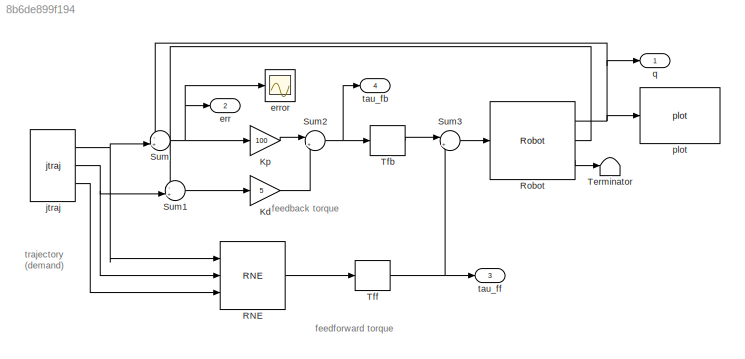
MODEL slx_8b6de899f194
KIND model
CONFIG AbsTol = auto
CONFIG FixedStep = auto
CONFIG MaxStep = auto
CONFIG MinStep = auto
CONFIG RelTol = 1e-3
CONFIG SampleTimeConstraint = Unconstrained
CONFIG Solver = ode23t
CONFIG SolverMode = Auto
CONFIG SolverName = ode23t
CONFIG StartTime = 0.0
CONFIG StopTime = 5
BLOCK [Gain] Kd
  Gain = 5
BLOCK [Gain] Kp
  Gain = 100
BLOCK [Reference] RNE  REF=roblocks/Arm/RNE  (lib defined in mdl_2a292b13c81b, mdl_69400f8cfe22, +12 more)
  Ports = [3, 1]
  SourceBlock = roblocks/Arm/RNE
  grav = [0 0 9.81]
  robot = p560.nofriction()
BLOCK [Reference] Robot  REF=roblocks/Arm/Robot  (lib defined in mdl_2a292b13c81b, mdl_69400f8cfe22, +12 more)
  Ports = [1, 3]
  SourceBlock = roblocks/Arm/Robot
  q0 = [0 0 0 0 0 0]
  robot = p560.nofriction
BLOCK [Sum] Sum
  IconShape = round
  Inputs = -+|
  Ports = [2, 1]
BLOCK [Sum] Sum1
  IconShape = round
  Inputs = -+|
  Ports = [2, 1]
BLOCK [Sum] Sum2
  IconShape = round
  Inputs = |++
  Ports = [2, 1]
BLOCK [Sum] Sum3
  IconShape = round
  Inputs = |++
  Ports = [2, 1]
BLOCK [Terminator] Terminator
BLOCK [ZeroOrderHold] Tfb
  SampleTime = 0.002
BLOCK [ZeroOrderHold] Tff
  SampleTime = 0.05
BLOCK [Outport] err
  IconDisplay = Port number
  Port = 2
BLOCK [Scope] error
  DataFormat = StructureWithTime
  Decimation = 1
  Floating = off
  Grid = on
  LimitDataPoints = off
  MaxDataPoints = 5000
  NumInputPorts = 1
  Ports = [1]
  SampleInput = off
  SampleTime = -1
  SaveName = ScopeData
  SaveToWorkspace = off
  ShowLegends = off
  TickLabels = OneTimeTick
  TimeRange = auto
  YMax = 1.00000
  YMin = -1.00000
  ZoomMode = on
BLOCK [Reference] jtraj  REF=roblocks/Toolbox/jtraj  (lib defined in mdl_2a292b13c81b, mdl_69400f8cfe22, +12 more)
  Ports = [0, 3]
  SourceBlock = roblocks/Toolbox/jtraj
  q0 = [0 0 0 0 0 0]
  qf = [pi/4 pi/2 -pi/2 0 0 0]
  tmax = 5
  ts = 0.02
BLOCK [Reference] plot  REF=roblocks/Arm/plot  (lib defined in mdl_2a292b13c81b, mdl_69400f8cfe22, +12 more)
  Ports = [1]
  SourceBlock = roblocks/Arm/plot
  fps = 10
  holdplot = on
  robot = p560
BLOCK [Outport] q
  IconDisplay = Port number
BLOCK [Outport] tau_fb
  IconDisplay = Port number
  Port = 4
BLOCK [Outport] tau_ff
  IconDisplay = Port number
  Port = 3
ANNOTATION (root): trajectory (demand)
ANNOTATION (root): feedforward torque
ANNOTATION (root): feedback torque
LINE Kd:1 -> Sum2:2
LINE Kp:1 -> Sum2:1
LINE RNE:1 -> Tff:1
NET Robot:1 -> Sum:1, plot:1, q:1
LINE Robot:2 -> Sum1:1
LINE Robot:3 -> Terminator:1
LINE Sum1:1 -> Kd:1
NET Sum2:1 -> Tfb:1, tau_fb:1
LINE Sum3:1 -> Robot:1
NET Sum:1 -> Kp:1, err:1, error:1
LINE Tfb:1 -> Sum3:1
NET Tff:1 -> Sum3:2, tau_ff:1
NET jtraj:1 -> RNE:1, Sum:2
NET jtraj:2 -> RNE:2, Sum1:2
LINE jtraj:3 -> RNE:3
note: NET lines group one-source signal fan-out (src -> all destinations, sorted); 1:1 wires keep LINE
